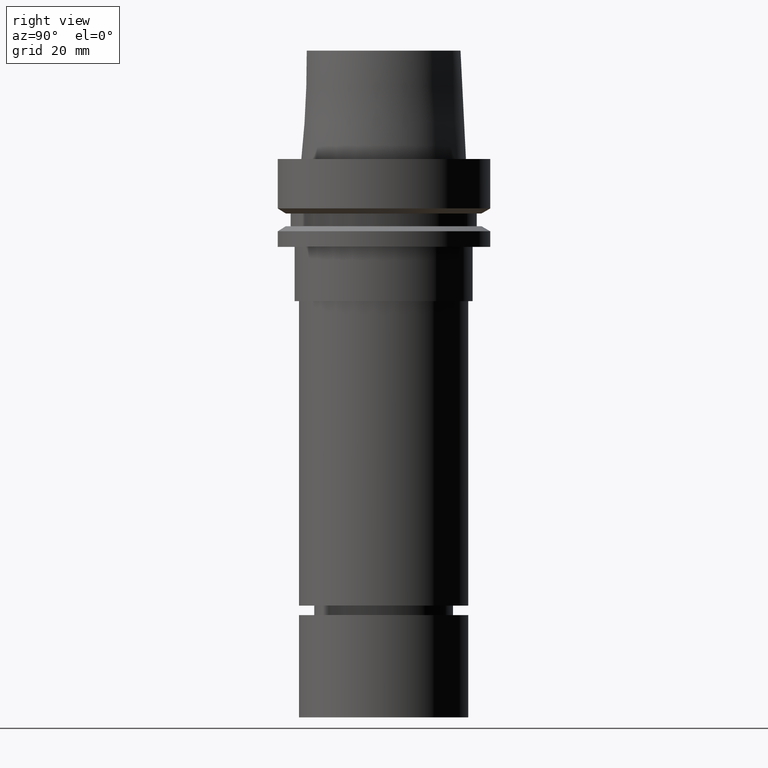
[diagram: clean part render]
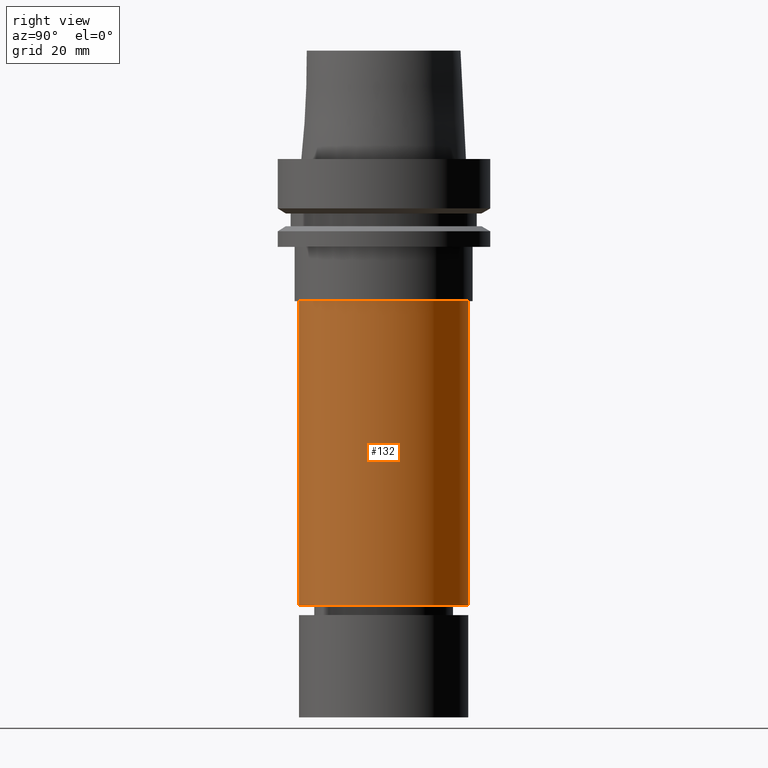
[diagram: same view with one face highlighted and labeled with its STEP entity id]
A machine part, right view. The second image highlights one B-rep face of the part: STEP entity #132.
In plain terms, the highlighted cylindrical surface (bore or boss wall) has radius 25 mm, axis along (-0, -0, 1).
Its self-contained STEP definition (entity closure, byte-faithful):
#132=ADVANCED_FACE('Unnamed[1]',(#295,#296),#297,.T.);
#134=EDGE_CURVE('Unnamed[1]',#299,#299,#300,.T.);
#139=EDGE_CURVE('Unnamed[1]',#307,#307,#308,.T.);
#295=FACE_BOUND('',#506,.T.);
#296=FACE_BOUND('',#507,.T.);
#297=CYLINDRICAL_SURFACE('',#508,25.0);
#299=VERTEX_POINT('',#511);
#300=CIRCLE('',#512,25.0);
#307=VERTEX_POINT('',#521);
#308=CIRCLE('',#522,25.0);
#506=EDGE_LOOP('',(#719));
#507=EDGE_LOOP('',(#720));
#508=AXIS2_PLACEMENT_3D('',#721,#722,#723);
#511=CARTESIAN_POINT('',(2.57175827820944E-015,25.0,-42.0));
#512=AXIS2_PLACEMENT_3D('',#724,#725,#726);
#521=CARTESIAN_POINT('',(8.08267852271583E-015,25.0,-132.000157569404));
#522=AXIS2_PLACEMENT_3D('',#733,#734,#735);
#719=ORIENTED_EDGE('',*,*,#134,.F.);
#720=ORIENTED_EDGE('',*,*,#139,.T.);
#721=CARTESIAN_POINT('',(5.32721840046263E-015,1.06544368009253E-014,-87.0000787847019));
#722=DIRECTION('',(-6.12323399573677E-017,-1.22464679914735E-016,1.0));
#723=DIRECTION('',(-1.23259516440783E-032,1.0,1.22464679914735E-016));
#724=CARTESIAN_POINT('',(2.57175827820944E-015,5.14351655641888E-015,-42.0));
#725=DIRECTION('',(-6.12323399573677E-017,-1.22464679914735E-016,1.0));
#726=DIRECTION('',(-1.23259516440783E-032,1.0,1.22464679914735E-016));
#733=CARTESIAN_POINT('',(8.08267852271583E-015,1.61653570454317E-014,-132.000157569404));
#734=DIRECTION('',(-6.12323399573677E-017,-1.22464679914735E-016,1.0));
#735=DIRECTION('',(-1.23259516440783E-032,1.0,1.22464679914735E-016));